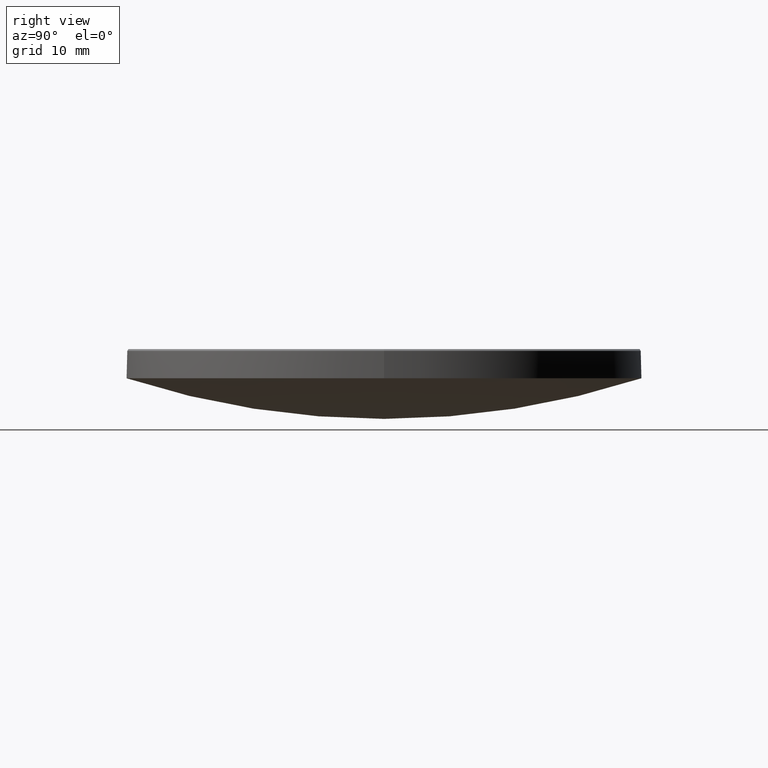
[diagram: clean part render]
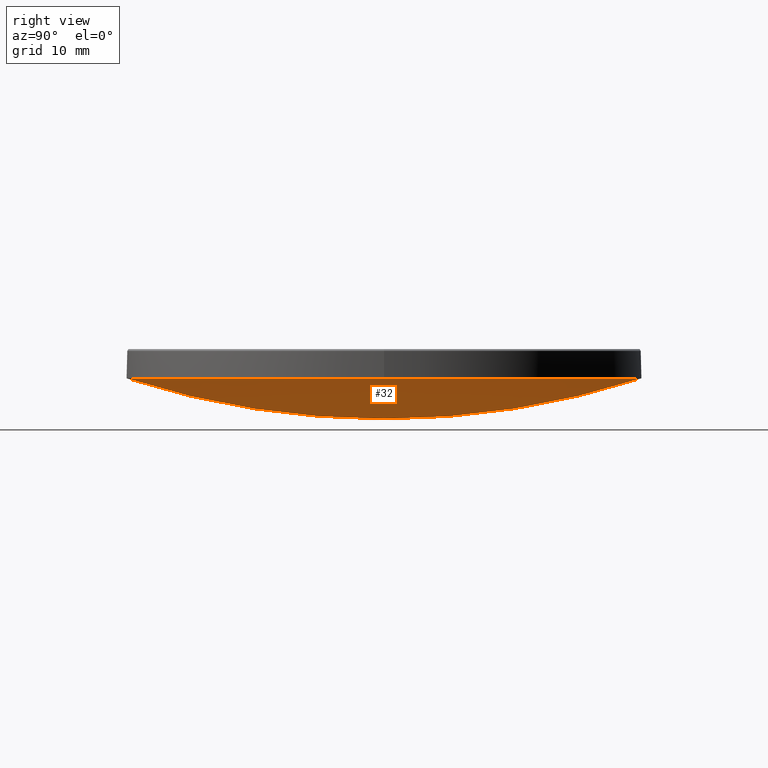
[diagram: same view with one face highlighted and labeled with its STEP entity id]
A machine part, right view. The second image highlights one B-rep face of the part: STEP entity #32.
In plain terms, the highlighted spherical surface has radius 82.54 mm.
Its self-contained STEP definition (entity closure, byte-faithful):
#4 = AXIS2_PLACEMENT_3D ( 'NONE', #185, #142, #99 ) ;
#10 = CARTESIAN_POINT ( 'NONE',  ( 0.000000000000000000, 0.000000000000000000, 13.00000000000000000 ) ) ;
#12 = DIRECTION ( 'NONE',  ( -0.000000000000000000, -0.000000000000000000, 1.000000000000000000 ) ) ;
#20 = DIRECTION ( 'NONE',  ( 1.000000000000000000, -0.000000000000000000, 0.000000000000000000 ) ) ;
#21 = DIRECTION ( 'NONE',  ( -0.000000000000000000, -0.000000000000000000, 1.000000000000000000 ) ) ;
#31 = DIRECTION ( 'NONE',  ( 1.000000000000000000, 0.000000000000000000, 0.000000000000000000 ) ) ;
#32 = ADVANCED_FACE ( 'NONE', ( #33 ), #52, .T. ) ;
#33 = FACE_OUTER_BOUND ( 'NONE', #247, .T. ) ;
#36 = DIRECTION ( 'NONE',  ( 1.000000000000000000, 0.000000000000000000, 0.000000000000000000 ) ) ;
#50 = AXIS2_PLACEMENT_3D ( 'NONE', #10, #12, #31 ) ;
#51 = EDGE_CURVE ( 'NONE', #270, #88, #197, .T. ) ;
#52 = SPHERICAL_SURFACE ( 'NONE', #179, 82.54000000000000625 ) ;
#61 = CIRCLE ( 'NONE', #93, 82.54000000000000625 ) ;
#64 = EDGE_CURVE ( 'NONE', #221, #270, #87, .T. ) ;
#73 = ORIENTED_EDGE ( 'NONE', *, *, #245, .F. ) ;
#87 = CIRCLE ( 'NONE', #4, 82.54000000000000625 ) ;
#88 = VERTEX_POINT ( 'NONE', #96 ) ;
#93 = AXIS2_PLACEMENT_3D ( 'NONE', #128, #20, #260 ) ;
#96 = CARTESIAN_POINT ( 'NONE',  ( 25.39999999999999503, 3.110602869834276471E-15, 13.00000000000000000 ) ) ;
#99 = DIRECTION ( 'NONE',  ( -1.224646799147352961E-16, -1.000000000000000000, 0.000000000000000000 ) ) ;
#113 = ORIENTED_EDGE ( 'NONE', *, *, #51, .F. ) ;
#119 = CARTESIAN_POINT ( 'NONE',  ( 0.000000000000000000, 25.39999999999999147, 12.99999999999999822 ) ) ;
#128 = CARTESIAN_POINT ( 'NONE',  ( 0.000000000000000000, 0.000000000000000000, 91.53465222435252713 ) ) ;
#132 = ORIENTED_EDGE ( 'NONE', *, *, #64, .F. ) ;
#134 = ORIENTED_EDGE ( 'NONE', *, *, #241, .T. ) ;
#137 = CARTESIAN_POINT ( 'NONE',  ( 0.000000000000000000, 0.000000000000000000, 91.53465222435252713 ) ) ;
#142 = DIRECTION ( 'NONE',  ( -1.000000000000000000, 1.224646799147353207E-16, 0.000000000000000000 ) ) ;
#162 = DIRECTION ( 'NONE',  ( -1.000000000000000000, 0.000000000000000000, 0.000000000000000000 ) ) ;
#166 = DIRECTION ( 'NONE',  ( 0.000000000000000000, 1.000000000000000000, 0.000000000000000000 ) ) ;
#179 = AXIS2_PLACEMENT_3D ( 'NONE', #137, #162, #166 ) ;
#185 = CARTESIAN_POINT ( 'NONE',  ( 0.000000000000000000, 0.000000000000000000, 91.53465222435252713 ) ) ;
#190 = CARTESIAN_POINT ( 'NONE',  ( -3.110602869834276076E-15, -25.39999999999999147, 12.99999999999999822 ) ) ;
#197 = CIRCLE ( 'NONE', #50, 25.39999999999999503 ) ;
#217 = CARTESIAN_POINT ( 'NONE',  ( 0.000000000000000000, 0.000000000000000000, 13.00000000000000000 ) ) ;
#219 = CIRCLE ( 'NONE', #256, 25.39999999999999503 ) ;
#221 = VERTEX_POINT ( 'NONE', #258 ) ;
#241 = EDGE_CURVE ( 'NONE', #221, #269, #61, .T. ) ;
#245 = EDGE_CURVE ( 'NONE', #88, #269, #219, .T. ) ;
#247 = EDGE_LOOP ( 'NONE', ( #132, #134, #73, #113 ) ) ;
#256 = AXIS2_PLACEMENT_3D ( 'NONE', #217, #21, #36 ) ;
#258 = CARTESIAN_POINT ( 'NONE',  ( 0.000000000000000000, 5.054117340081126317E-15, 8.994652224352527980 ) ) ;
#260 = DIRECTION ( 'NONE',  ( 0.000000000000000000, 0.000000000000000000, -1.000000000000000000 ) ) ;
#269 = VERTEX_POINT ( 'NONE', #119 ) ;
#270 = VERTEX_POINT ( 'NONE', #190 ) ;